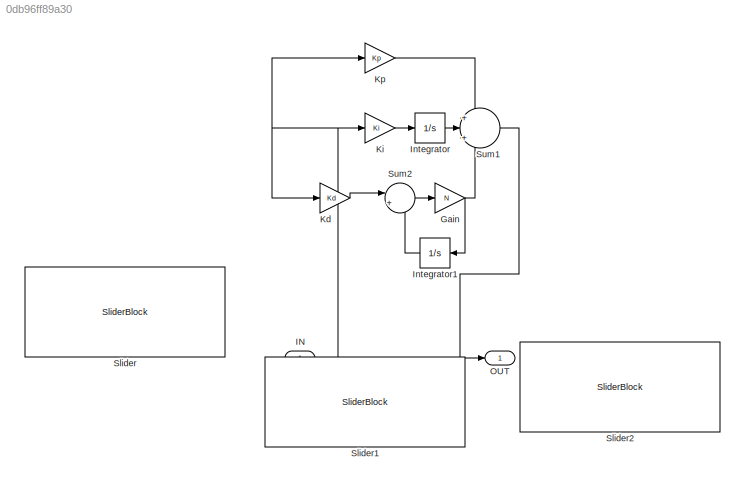
MODEL slx_0db96ff89a30
KIND model
CONFIG AbsTol = auto
CONFIG EnableMultiTasking = off
CONFIG FixedStep = auto
CONFIG MaxStep = auto
CONFIG MinStep = auto
CONFIG RelTol = 1e-3
CONFIG SampleTimeConstraint = Unconstrained
CONFIG SolverName = VariableStepAuto
CONFIG StartTime = 0.0
CONFIG StopTime = 100
WORKSPACE source: mxarray member
WORKSPACE Kd = 230
WORKSPACE Ki = 120
WORKSPACE Kp = 1250
WORKSPACE N = 100000
BLOCK [Gain] Gain
  Gain = N
BLOCK [Inport] IN
  IconDisplay = Signal name
  OutDataTypeStr = double
  PortDimensions = 1
  SampleTime = 0
  SamplingMode = Sample based
  SignalType = real
BLOCK [Integrator] Integrator
  Ports = [1, 1]
BLOCK [Integrator] Integrator1
  NameLocation = top
  Ports = [1, 1]
BLOCK [Gain] Kd
  Gain = Kd
BLOCK [Gain] Ki
  Gain = Ki
BLOCK [Gain] Kp
  Gain = Kp
BLOCK [Outport] OUT
  OutDataTypeStr = double
  PortDimensions = 1
  SampleTime = 0
  SamplingMode = Sample based
  SignalType = real
BLOCK [SliderBlock] Slider
BLOCK [SliderBlock] Slider1
BLOCK [SliderBlock] Slider2
BLOCK [Sum] Sum1
  Inputs = +|+|+
  Ports = [3, 1]
BLOCK [Sum] Sum2
  Inputs = |+-
  Ports = [2, 1]
NET Gain:1 -> Integrator1:1, Sum1:3
NET IN:1 -> Kd:1, Ki:1, Kp:1
LINE Integrator1:1 -> Sum2:2
LINE Integrator:1 -> Sum1:2
LINE Kd:1 -> Sum2:1
LINE Ki:1 -> Integrator:1
LINE Kp:1 -> Sum1:1
LINE Sum1:1 -> OUT:1
LINE Sum2:1 -> Gain:1
note: NET lines group one-source signal fan-out (src -> all destinations, sorted); 1:1 wires keep LINE
